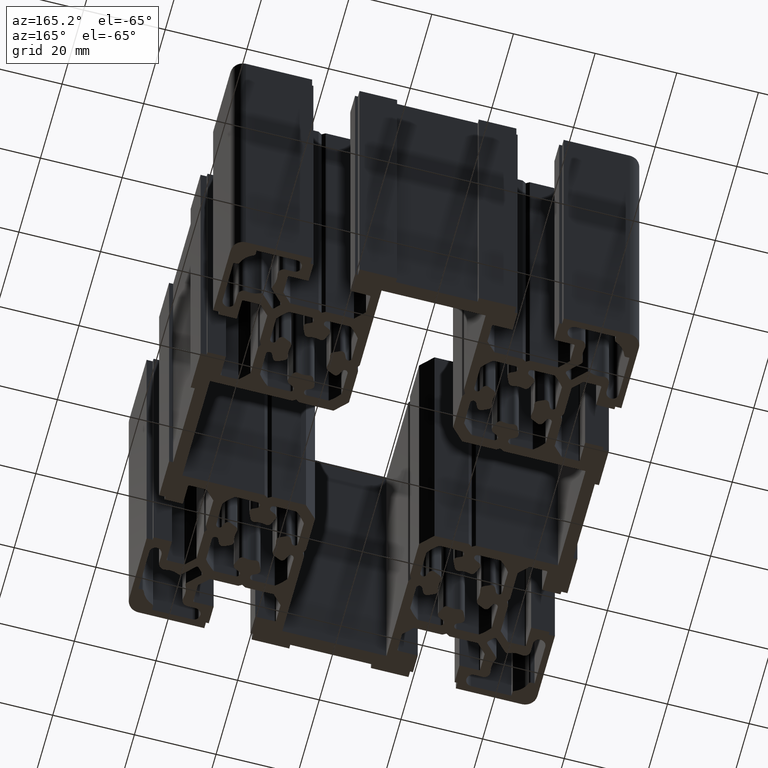
[diagram: clean part render]
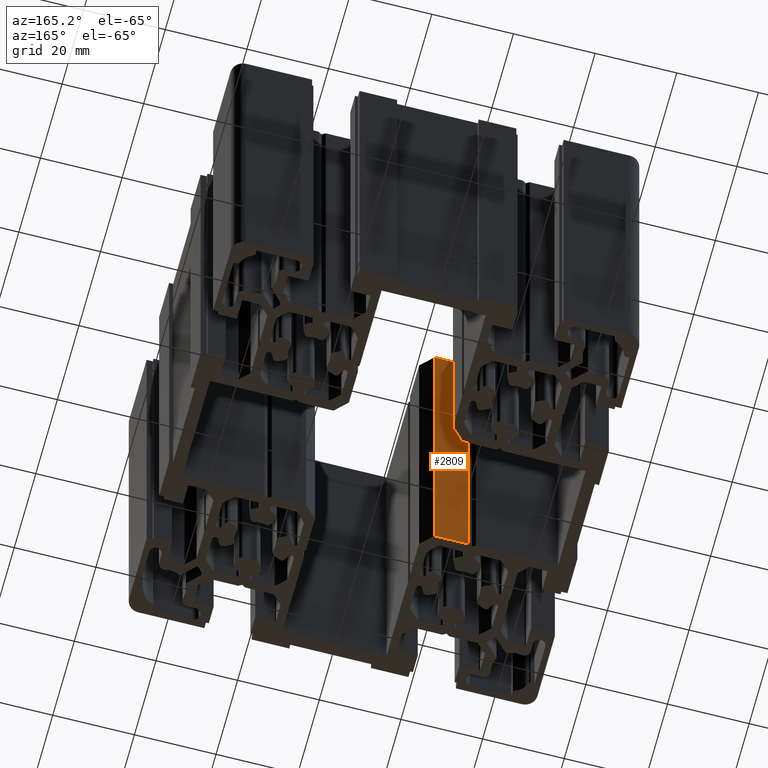
[diagram: same view with one face highlighted and labeled with its STEP entity id]
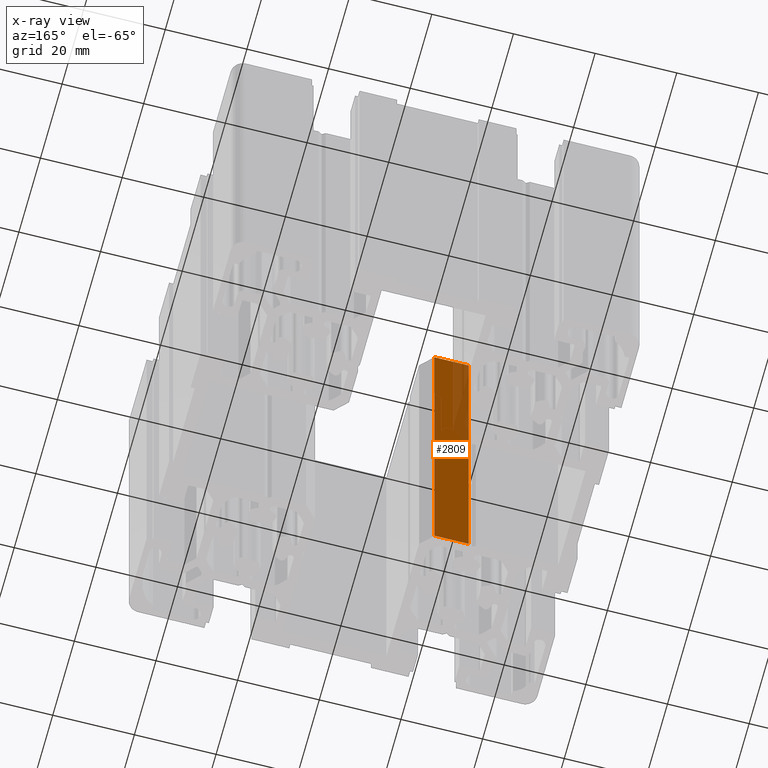
[diagram: x-ray of the same camera — body ghosted, the highlighted face saturated]
A machine part, auxiliary view. The second image highlights one B-rep face of the part: STEP entity #2809.
The next image is the same camera in x-ray: the body ghosted, the highlighted face saturated — about 19% of this face is hidden behind the body in this view.
In plain terms, the highlighted planar face has unit normal (0, 1, -0).
Its self-contained STEP definition (entity closure, byte-faithful):
#2767 = EDGE_LOOP ( 'NONE', ( #2808, #2811, #2813, #2768 ) ) ;
#2768 = ORIENTED_EDGE ( 'NONE', *, *, #2812, .T. ) ;
#2770 = EDGE_CURVE ( 'NONE', #8549, #9989, #8111, .T. ) ;
#2808 = ORIENTED_EDGE ( 'NONE', *, *, #9993, .F. ) ;
#2809 = ADVANCED_FACE ( 'NONE', ( #12117 ), #12119, .T. ) ;
#2811 = ORIENTED_EDGE ( 'NONE', *, *, #2770, .F. ) ;
#2812 = EDGE_CURVE ( 'NONE', #8491, #10002, #12109, .T. ) ;
#2813 = ORIENTED_EDGE ( 'NONE', *, *, #8550, .T. ) ;
#6504 = CARTESIAN_POINT ( 'NONE',  ( -24.13397459621558000, -12.75000000000022900, 100.0000000000000000 ) ) ;
#6730 = VECTOR ( 'NONE', #7657, 1000.000000000000000 ) ;
#7657 = DIRECTION ( 'NONE',  ( -0.0000000000000000000, -0.0000000000000000000, -1.000000000000000000 ) ) ;
#8111 = LINE ( 'NONE', #6504, #6730 ) ;
#8491 = VERTEX_POINT ( 'NONE', #14565 ) ;
#8549 = VERTEX_POINT ( 'NONE', #14687 ) ;
#8550 = EDGE_CURVE ( 'NONE', #8549, #8491, #14702, .T. ) ;
#9989 = VERTEX_POINT ( 'NONE', #17212 ) ;
#9993 = EDGE_CURVE ( 'NONE', #9989, #10002, #17222, .T. ) ;
#10002 = VERTEX_POINT ( 'NONE', #17248 ) ;
#12106 = DIRECTION ( 'NONE',  ( -1.000000000000000000, 6.000373716069560700E-015, 0.0000000000000000000 ) ) ;
#12107 = DIRECTION ( 'NONE',  ( 6.000373716069560700E-015, 1.000000000000000000, -0.0000000000000000000 ) ) ;
#12108 = CARTESIAN_POINT ( 'NONE',  ( -15.74999999999990900, -12.75000000000028100, 100.0000000000000000 ) ) ;
#12109 = LINE ( 'NONE', #12108, #12162 ) ;
#12111 = CARTESIAN_POINT ( 'NONE',  ( -24.13397459621558000, -12.75000000000022900, 100.0000000000000000 ) ) ;
#12117 = FACE_OUTER_BOUND ( 'NONE', #2767, .T. ) ;
#12119 = PLANE ( 'NONE',  #12124 ) ;
#12124 = AXIS2_PLACEMENT_3D ( 'NONE', #12111, #12107, #12106 ) ;
#12161 = DIRECTION ( 'NONE',  ( -0.0000000000000000000, -0.0000000000000000000, -1.000000000000000000 ) ) ;
#12162 = VECTOR ( 'NONE', #12161, 1000.000000000000000 ) ;
#14565 = CARTESIAN_POINT ( 'NONE',  ( -15.74999999999990900, -12.75000000000028100, 100.0000000000000000 ) ) ;
#14687 = CARTESIAN_POINT ( 'NONE',  ( -24.13397459621558000, -12.75000000000022900, 100.0000000000000000 ) ) ;
#14702 = LINE ( 'NONE', #14733, #14732 ) ;
#14731 = DIRECTION ( 'NONE',  ( 1.000000000000000000, -6.000373716069560700E-015, 0.0000000000000000000 ) ) ;
#14732 = VECTOR ( 'NONE', #14731, 1000.000000000000000 ) ;
#14733 = CARTESIAN_POINT ( 'NONE',  ( -24.13397459621558000, -12.75000000000022900, 100.0000000000000000 ) ) ;
#17212 = CARTESIAN_POINT ( 'NONE',  ( -24.13397459621558000, -12.75000000000022900, 0.0000000000000000000 ) ) ;
#17222 = LINE ( 'NONE', #17264, #17263 ) ;
#17248 = CARTESIAN_POINT ( 'NONE',  ( -15.74999999999990900, -12.75000000000028100, 0.0000000000000000000 ) ) ;
#17262 = DIRECTION ( 'NONE',  ( 1.000000000000000000, -6.000373716069560700E-015, 0.0000000000000000000 ) ) ;
#17263 = VECTOR ( 'NONE', #17262, 1000.000000000000000 ) ;
#17264 = CARTESIAN_POINT ( 'NONE',  ( -24.13397459621558000, -12.75000000000022900, 0.0000000000000000000 ) ) ;